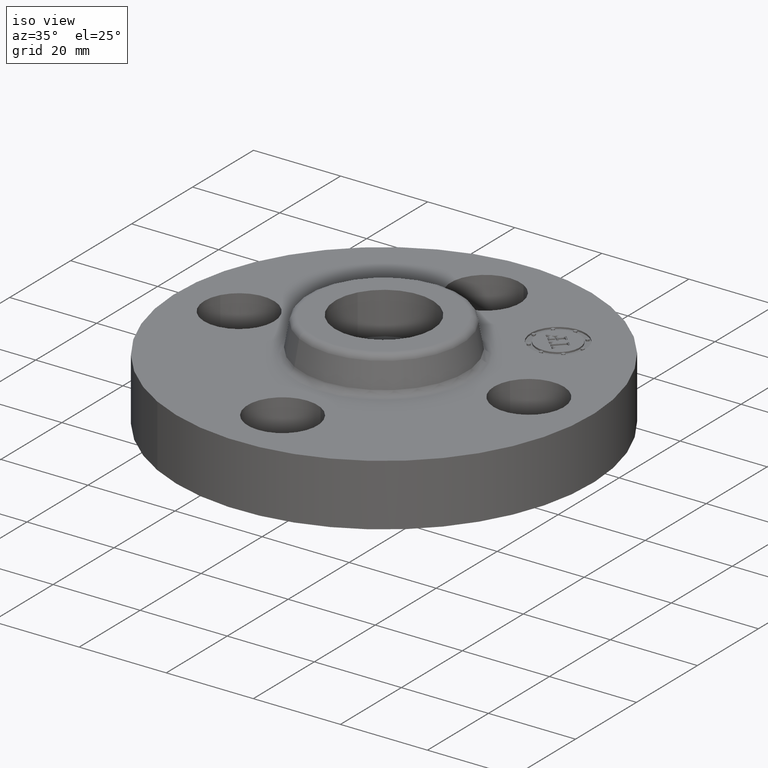
[diagram: clean part render]
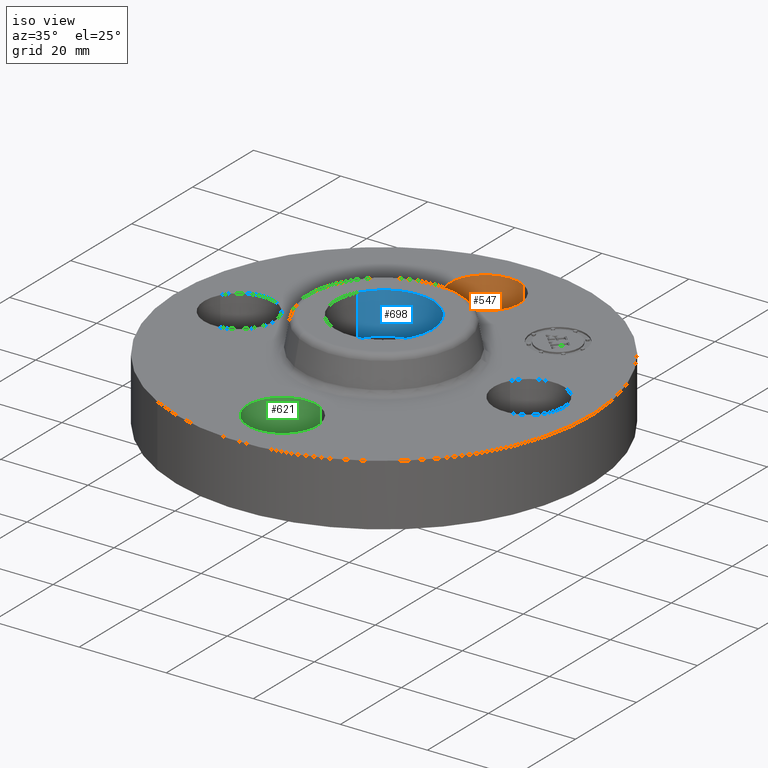
[diagram: same view with three faces highlighted in distinct colors, each labeled with its STEP entity id]
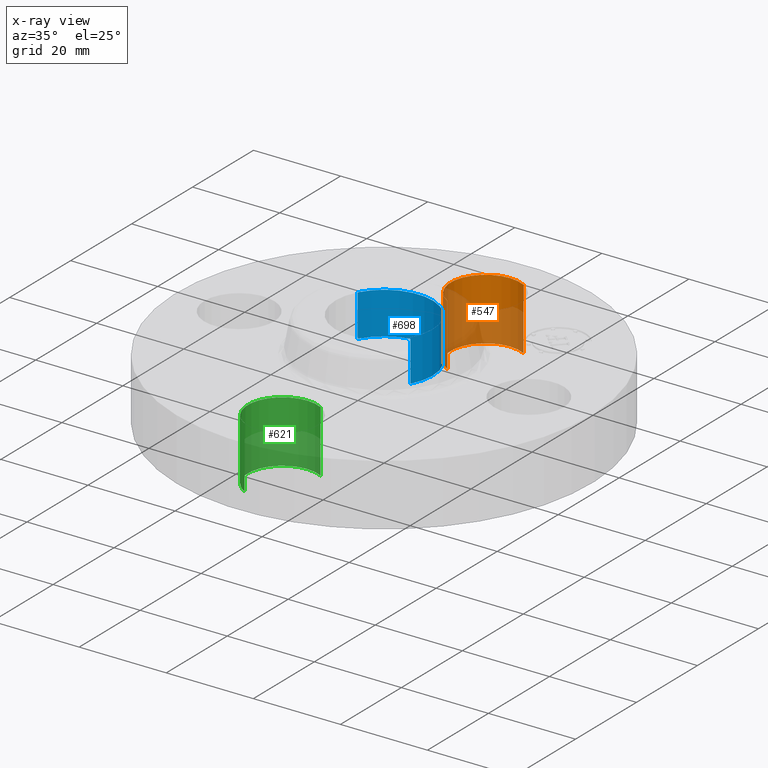
[diagram: x-ray of the same camera — body ghosted, the three highlighted faces saturated]
A machine part, iso view with three faces highlighted in distinct colors.
The next image is the same camera in x-ray (body ghosted, the three faces saturated) — at least one of them is partly hidden behind the body in this view.
Their STEP definitions:

[orange] entity #547 — the highlighted cylindrical surface (partial cylindrical patch) has radius 8.001 mm, axis along (0, 0, -1).
#274=AXIS2_PLACEMENT_3D('Circle Axis2P3D',#272,#273,$) ;
#508=AXIS2_PLACEMENT_3D('Cylinder Axis2P3D',#505,#506,#507) ;
#538=AXIS2_PLACEMENT_3D('Circle Axis2P3D',#536,#537,$) ;
#272=CARTESIAN_POINT('Axis2P3D Location',(-3.1470888887E-016,1.31000000001,0.)) ;
#276=CARTESIAN_POINT('Vertex',(-0.151019044661,1.03356149301,0.)) ;
#278=CARTESIAN_POINT('Vertex',(0.151019044661,1.586438507,6.99353086378E-017)) ;
#505=CARTESIAN_POINT('Axis2P3D Location',(-2.40643096033E-016,1.31000000001,0.556062992128)) ;
#510=CARTESIAN_POINT('Line Origine',(0.151019044661,1.586438507,0.280000000001)) ;
#514=CARTESIAN_POINT('Vertex',(0.151019044661,1.586438507,0.560000000002)) ;
#517=CARTESIAN_POINT('Line Origine',(-0.151019044661,1.03356149301,0.280000000001)) ;
#521=CARTESIAN_POINT('Vertex',(-0.151019044661,1.03356149301,0.560000000002)) ;
#536=CARTESIAN_POINT('Axis2P3D Location',(-2.40643096033E-016,1.31000000001,0.560000000002)) ;
#273=DIRECTION('Axis2P3D Direction',(0.,0.,-0.0393700787402)) ;
#506=DIRECTION('Axis2P3D Direction',(0.,0.,-0.0393700787402)) ;
#507=DIRECTION('Axis2P3D XDirection',(-0.0188750212049,-0.0345504945626,-0.)) ;
#511=DIRECTION('Vector Direction',(0.,0.,-0.0393700787402)) ;
#518=DIRECTION('Vector Direction',(0.,0.,-0.0393700787402)) ;
#537=DIRECTION('Axis2P3D Direction',(0.,0.,-0.0393700787402)) ;
#512=VECTOR('Line Direction',#511,0.0393700787402) ;
#519=VECTOR('Line Direction',#518,0.0393700787402) ;
#542=ORIENTED_EDGE('',*,*,#523,.F.) ;
#543=ORIENTED_EDGE('',*,*,#280,.T.) ;
#544=ORIENTED_EDGE('',*,*,#516,.T.) ;
#545=ORIENTED_EDGE('',*,*,#540,.F.) ;
#547=ADVANCED_FACE('PartBody',(#546),#509,.F.) ;
#275=CIRCLE('generated circle',#274,0.315000000001) ;
#539=CIRCLE('generated circle',#538,0.315000000001) ;
#509=CYLINDRICAL_SURFACE('generated cylinder',#508,0.315000000001) ;
#280=EDGE_CURVE('',#277,#279,#275,.T.) ;
#516=EDGE_CURVE('',#279,#515,#513,.F.) ;
#523=EDGE_CURVE('',#277,#522,#520,.F.) ;
#540=EDGE_CURVE('',#522,#515,#539,.T.) ;
#541=EDGE_LOOP('',(#542,#543,#544,#545)) ;
#546=FACE_OUTER_BOUND('',#541,.T.) ;
#513=LINE('Line',#510,#512) ;
#520=LINE('Line',#517,#519) ;
#277=VERTEX_POINT('',#276) ;
#279=VERTEX_POINT('',#278) ;
#515=VERTEX_POINT('',#514) ;
#522=VERTEX_POINT('',#521) ;

[blue] entity #698 — the highlighted cylindrical surface (partial cylindrical patch) has radius 11.176 mm, axis along (0, 0, -1).
#42=AXIS2_PLACEMENT_3D('Circle Axis2P3D',#40,#41,$) ;
#488=AXIS2_PLACEMENT_3D('Circle Axis2P3D',#486,#487,$) ;
#680=AXIS2_PLACEMENT_3D('Cylinder Axis2P3D',#677,#678,#679) ;
#40=CARTESIAN_POINT('Axis2P3D Location',(1.39870617276E-016,1.04902962957E-016,0.500000000002)) ;
#44=CARTESIAN_POINT('Vertex',(-0.386136327233,0.210947236987,0.500000000002)) ;
#46=CARTESIAN_POINT('Vertex',(0.386136327233,-0.210947236987,0.500000000002)) ;
#486=CARTESIAN_POINT('Axis2P3D Location',(1.39870617276E-016,1.39870617276E-016,0.880000000004)) ;
#490=CARTESIAN_POINT('Vertex',(-0.386136327233,0.210947236987,0.880000000004)) ;
#492=CARTESIAN_POINT('Vertex',(0.386136327233,-0.210947236987,0.880000000004)) ;
#677=CARTESIAN_POINT('Axis2P3D Location',(1.39870617276E-016,1.04902962957E-016,0.87606299213)) ;
#682=CARTESIAN_POINT('Line Origine',(-0.386136327233,0.210947236987,0.690000000003)) ;
#687=CARTESIAN_POINT('Line Origine',(0.386136327233,-0.210947236987,0.690000000003)) ;
#41=DIRECTION('Axis2P3D Direction',(0.,0.,-0.0393700787402)) ;
#487=DIRECTION('Axis2P3D Direction',(0.,0.,-0.0393700787402)) ;
#678=DIRECTION('Axis2P3D Direction',(0.,0.,-0.0393700787402)) ;
#679=DIRECTION('Axis2P3D XDirection',(0.0345504945626,-0.0188750212049,0.)) ;
#683=DIRECTION('Vector Direction',(0.,0.,-0.0393700787402)) ;
#688=DIRECTION('Vector Direction',(0.,0.,-0.0393700787402)) ;
#684=VECTOR('Line Direction',#683,0.0393700787402) ;
#689=VECTOR('Line Direction',#688,0.0393700787402) ;
#693=ORIENTED_EDGE('',*,*,#494,.F.) ;
#694=ORIENTED_EDGE('',*,*,#686,.F.) ;
#695=ORIENTED_EDGE('',*,*,#48,.T.) ;
#696=ORIENTED_EDGE('',*,*,#691,.T.) ;
#698=ADVANCED_FACE('PartBody',(#697),#681,.F.) ;
#43=CIRCLE('generated circle',#42,0.440000000002) ;
#489=CIRCLE('generated circle',#488,0.440000000002) ;
#681=CYLINDRICAL_SURFACE('generated cylinder',#680,0.440000000002) ;
#48=EDGE_CURVE('',#45,#47,#43,.T.) ;
#494=EDGE_CURVE('',#491,#493,#489,.T.) ;
#686=EDGE_CURVE('',#45,#491,#685,.F.) ;
#691=EDGE_CURVE('',#47,#493,#690,.F.) ;
#692=EDGE_LOOP('',(#693,#694,#695,#696)) ;
#697=FACE_OUTER_BOUND('',#692,.T.) ;
#685=LINE('Line',#682,#684) ;
#690=LINE('Line',#687,#689) ;
#45=VERTEX_POINT('',#44) ;
#47=VERTEX_POINT('',#46) ;
#491=VERTEX_POINT('',#490) ;
#493=VERTEX_POINT('',#492) ;

[green] entity #621 — the highlighted cylindrical surface (partial cylindrical patch) has radius 8.001 mm, axis along (0, -0, -1).
#247=AXIS2_PLACEMENT_3D('Circle Axis2P3D',#245,#246,$) ;
#594=AXIS2_PLACEMENT_3D('Cylinder Axis2P3D',#591,#592,#593) ;
#612=AXIS2_PLACEMENT_3D('Circle Axis2P3D',#610,#611,$) ;
#240=CARTESIAN_POINT('Vertex',(0.151019044661,-1.03356149301,0.)) ;
#242=CARTESIAN_POINT('Vertex',(-0.151019044661,-1.586438507,6.99353086378E-017)) ;
#245=CARTESIAN_POINT('Axis2P3D Location',(-1.39870617276E-016,-1.31000000001,0.)) ;
#591=CARTESIAN_POINT('Axis2P3D Location',(-1.99526869207E-016,-1.31000000001,0.556062992128)) ;
#596=CARTESIAN_POINT('Line Origine',(-0.151019044661,-1.586438507,0.280000000001)) ;
#600=CARTESIAN_POINT('Vertex',(-0.151019044661,-1.586438507,0.560000000002)) ;
#603=CARTESIAN_POINT('Line Origine',(0.151019044661,-1.03356149301,0.280000000001)) ;
#607=CARTESIAN_POINT('Vertex',(0.151019044661,-1.03356149301,0.560000000002)) ;
#610=CARTESIAN_POINT('Axis2P3D Location',(-1.99526869207E-016,-1.31000000001,0.560000000002)) ;
#246=DIRECTION('Axis2P3D Direction',(0.,0.,-0.0393700787402)) ;
#592=DIRECTION('Axis2P3D Direction',(0.,-0.,-0.0393700787402)) ;
#593=DIRECTION('Axis2P3D XDirection',(0.0188750212049,0.0345504945626,-0.)) ;
#597=DIRECTION('Vector Direction',(0.,0.,-0.0393700787402)) ;
#604=DIRECTION('Vector Direction',(0.,0.,-0.0393700787402)) ;
#611=DIRECTION('Axis2P3D Direction',(0.,-0.,-0.0393700787402)) ;
#598=VECTOR('Line Direction',#597,0.0393700787402) ;
#605=VECTOR('Line Direction',#604,0.0393700787402) ;
#616=ORIENTED_EDGE('',*,*,#602,.F.) ;
#617=ORIENTED_EDGE('',*,*,#249,.T.) ;
#618=ORIENTED_EDGE('',*,*,#609,.T.) ;
#619=ORIENTED_EDGE('',*,*,#614,.F.) ;
#621=ADVANCED_FACE('PartBody',(#620),#595,.F.) ;
#248=CIRCLE('generated circle',#247,0.315000000001) ;
#613=CIRCLE('generated circle',#612,0.315000000001) ;
#595=CYLINDRICAL_SURFACE('generated cylinder',#594,0.315000000001) ;
#249=EDGE_CURVE('',#243,#241,#248,.T.) ;
#602=EDGE_CURVE('',#243,#601,#599,.F.) ;
#609=EDGE_CURVE('',#241,#608,#606,.F.) ;
#614=EDGE_CURVE('',#601,#608,#613,.T.) ;
#615=EDGE_LOOP('',(#616,#617,#618,#619)) ;
#620=FACE_OUTER_BOUND('',#615,.T.) ;
#599=LINE('Line',#596,#598) ;
#606=LINE('Line',#603,#605) ;
#241=VERTEX_POINT('',#240) ;
#243=VERTEX_POINT('',#242) ;
#601=VERTEX_POINT('',#600) ;
#608=VERTEX_POINT('',#607) ;